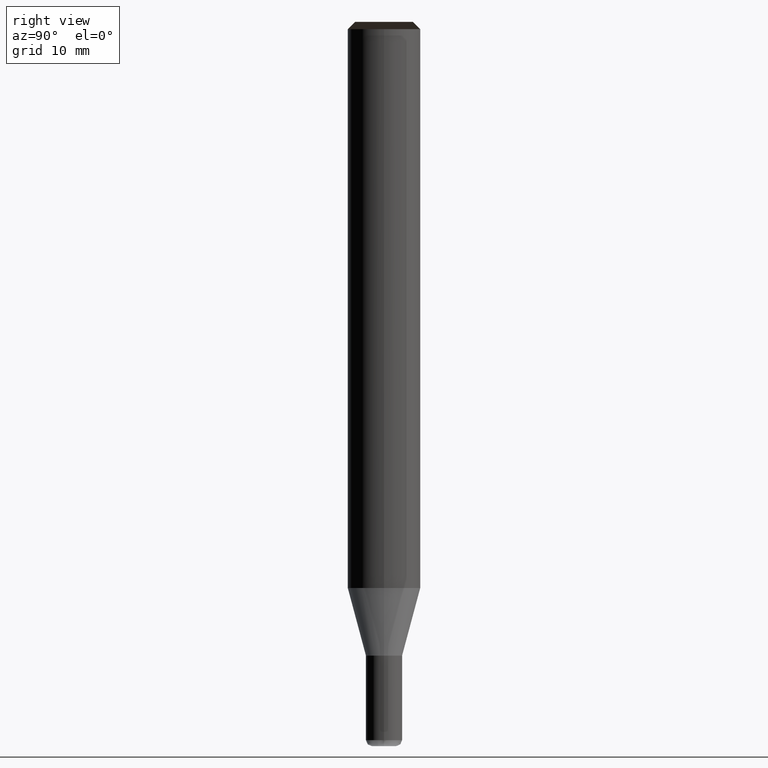
[diagram: clean part render]
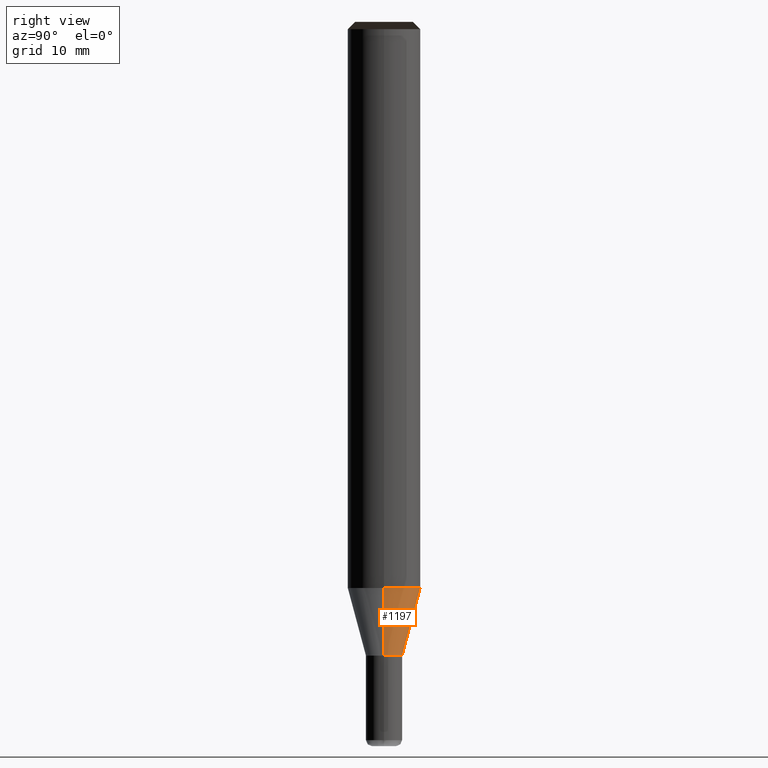
[diagram: same view with one face highlighted and labeled with its STEP entity id]
A machine part, right view. The second image highlights one B-rep face of the part: STEP entity #1197.
In plain terms, the highlighted face is a freeform B-spline surface patch.
Its self-contained STEP definition (entity closure, byte-faithful):
#956=CARTESIAN_POINT('',(1.5,0.0,-5.598076211353));
#957=CARTESIAN_POINT('',(1.5,1.5,-5.598076211353));
#958=CARTESIAN_POINT('',(0.0,1.5,-5.598076211353));
#959=CARTESIAN_POINT('',(-1.5,1.5,-5.598076211353));
#960=CARTESIAN_POINT('',(-1.5,0.0,-5.598076211353));
#980=CARTESIAN_POINT('',(3.0,0.0,-0.0));
#981=CARTESIAN_POINT('',(3.0,3.0,-0.0));
#982=CARTESIAN_POINT('',(0.0,3.0,-0.0));
#983=CARTESIAN_POINT('',(-3.0,3.0,-0.0));
#984=CARTESIAN_POINT('',(-3.0,0.0,-0.0));
#1178=(
BOUNDED_SURFACE()
B_SPLINE_SURFACE(1,2,(
(#956,#957,#958,#959,#960),
(#980,#981,#982,#983,#984)
), .UNSPECIFIED.,.F.,.F.,.F.)
B_SPLINE_SURFACE_WITH_KNOTS((2,2),(3,2,3),(
0.0,1.0),(
0.0,0.5,1.0), .UNSPECIFIED.)
GEOMETRIC_REPRESENTATION_ITEM()
RATIONAL_B_SPLINE_SURFACE(((1.0,0.707106781187,1.0,0.707106781187,1.0),
(1.0,0.707106781187,1.0,0.707106781187,1.0)
))
REPRESENTATION_ITEM('')
SURFACE()
);
#1179=(
BOUNDED_CURVE()
B_SPLINE_CURVE(2,(#980,#981,#982,#983,#984),.UNSPECIFIED.,.F.,.F.)
B_SPLINE_CURVE_WITH_KNOTS((3,2,3),
(0.0,0.5,1.0),.UNSPECIFIED.)
CURVE()
GEOMETRIC_REPRESENTATION_ITEM()
RATIONAL_B_SPLINE_CURVE((1.0,0.707106781187,1.0,0.707106781187,1.0))
REPRESENTATION_ITEM('')
);
#1180=(
BOUNDED_CURVE()
B_SPLINE_CURVE(1,(#984,#960),.UNSPECIFIED.,.F.,.F.)
B_SPLINE_CURVE_WITH_KNOTS((2,2),
(0.0,1.0),.UNSPECIFIED.)
CURVE()
GEOMETRIC_REPRESENTATION_ITEM()
RATIONAL_B_SPLINE_CURVE((1.0,1.0))
REPRESENTATION_ITEM('')
);
#1181=(
BOUNDED_CURVE()
B_SPLINE_CURVE(2,(#960,#959,#958,#957,#956),.UNSPECIFIED.,.F.,.F.)
B_SPLINE_CURVE_WITH_KNOTS((3,2,3),
(0.0,0.5,1.0),.UNSPECIFIED.)
CURVE()
GEOMETRIC_REPRESENTATION_ITEM()
RATIONAL_B_SPLINE_CURVE((1.0,0.707106781187,1.0,0.707106781187,1.0))
REPRESENTATION_ITEM('')
);
#1182=(
BOUNDED_CURVE()
B_SPLINE_CURVE(1,(#956,#980),.UNSPECIFIED.,.F.,.F.)
B_SPLINE_CURVE_WITH_KNOTS((2,2),
(0.0,1.0),.UNSPECIFIED.)
CURVE()
GEOMETRIC_REPRESENTATION_ITEM()
RATIONAL_B_SPLINE_CURVE((1.0,1.0))
REPRESENTATION_ITEM('')
);
#1183=VERTEX_POINT('',#956);
#1184=VERTEX_POINT('',#960);
#1185=VERTEX_POINT('',#980);
#1186=VERTEX_POINT('',#984);
#1187=EDGE_CURVE('',#1185,#1186,#1179,.T.);
#1188=EDGE_CURVE('',#1186,#1184,#1180,.T.);
#1189=EDGE_CURVE('',#1184,#1183,#1181,.T.);
#1190=EDGE_CURVE('',#1183,#1185,#1182,.T.);
#1191=ORIENTED_EDGE('',*,*,#1187,.T.);
#1192=ORIENTED_EDGE('',*,*,#1188,.T.);
#1193=ORIENTED_EDGE('',*,*,#1189,.T.);
#1194=ORIENTED_EDGE('',*,*,#1190,.T.);
#1195=EDGE_LOOP('',(#1191,#1192,#1193,#1194));
#1196=FACE_OUTER_BOUND('',#1195,.T.);
#1197=ADVANCED_FACE('',(#1196),#1178,.T.);